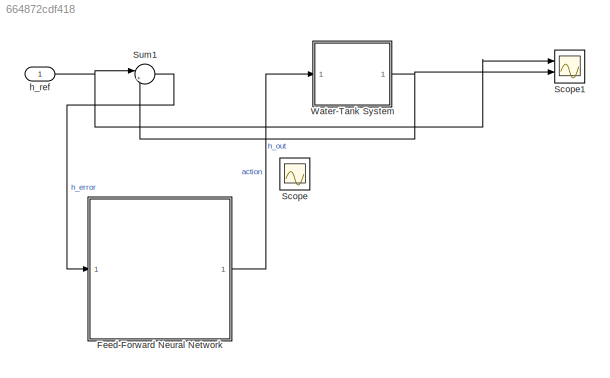
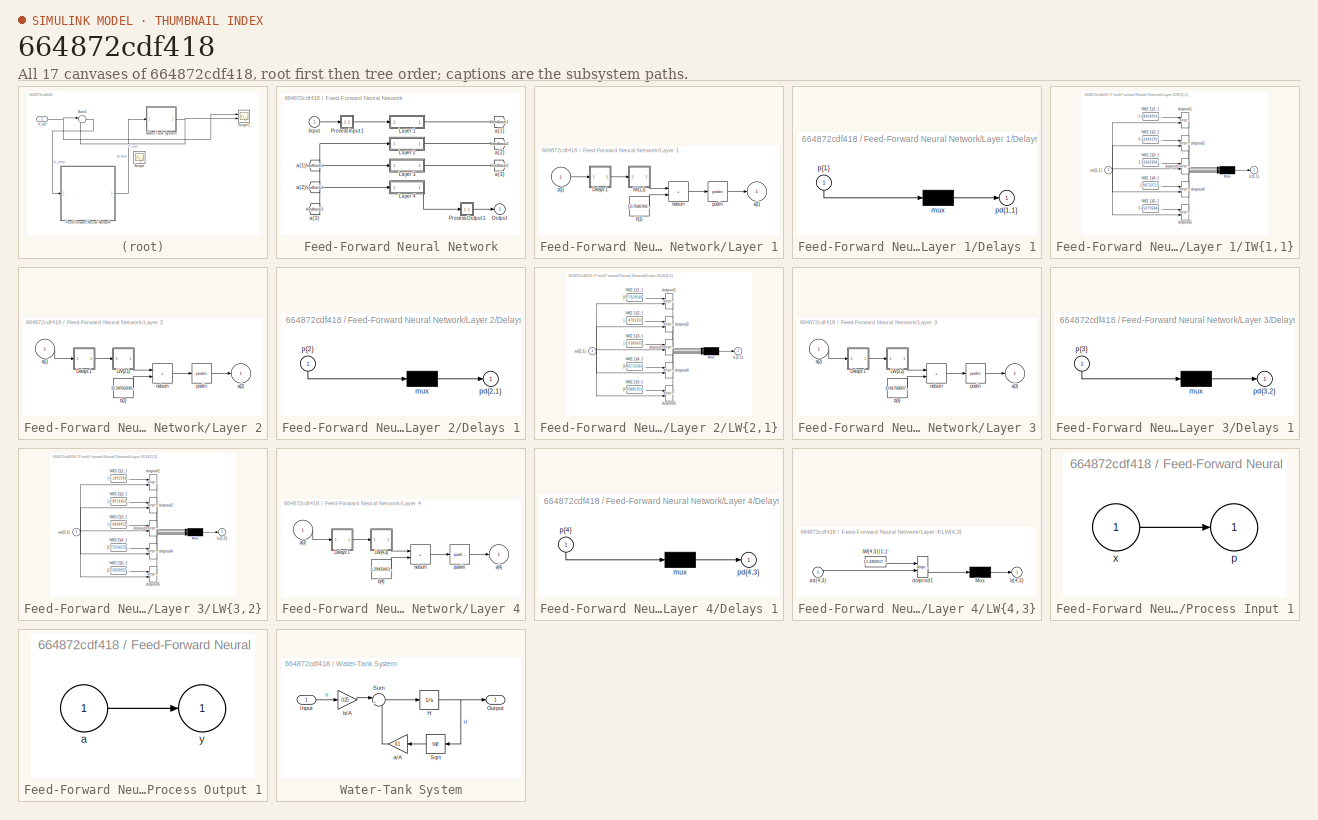
[diagram: thumbnail index - all 17 canvases of the model, root first then tree order]
MODEL slx_664872cdf418
KIND model
CONFIG AbsTol = auto
CONFIG EnableMultiTasking = on
CONFIG FixedStep = Ts
CONFIG MaxStep = auto
CONFIG MinStep = auto
CONFIG RelTol = 1e-3
CONFIG SampleTimeConstraint = Unconstrained
CONFIG SolverName = FixedStepAuto
CONFIG StartTime = 0
CONFIG StopTime = T
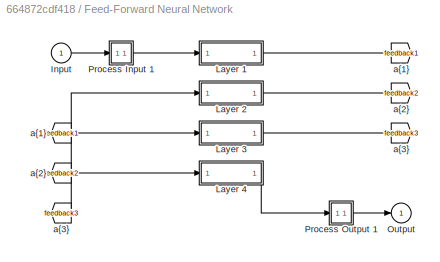
BLOCK [SubSystem] Feed-Forward Neural Network
  Ports = [1, 1]
BLOCK [From] Feed-Forward Neural Network/ a{1} 
  GotoTag = feedback1
BLOCK [From] Feed-Forward Neural Network/ a{2} 
  GotoTag = feedback2
BLOCK [From] Feed-Forward Neural Network/ a{3} 
  GotoTag = feedback3
BLOCK [Inport] Feed-Forward Neural Network/Input
  PortDimensions = 1
BLOCK [SubSystem] Feed-Forward Neural Network/Layer 1
  Ports = [1, 1]
BLOCK [SubSystem] Feed-Forward Neural Network/Layer 1/Delays 1
  Ports = [1, 1]
BLOCK [Mux] Feed-Forward Neural Network/Layer 1/Delays 1/mux
  Inputs = 1
  Ports = [1, 1]
BLOCK [Outport] Feed-Forward Neural Network/Layer 1/Delays 1/pd{1,1}
BLOCK [Inport] Feed-Forward Neural Network/Layer 1/Delays 1/p{1}
  NameLocation = left
  PortDimensions = 1
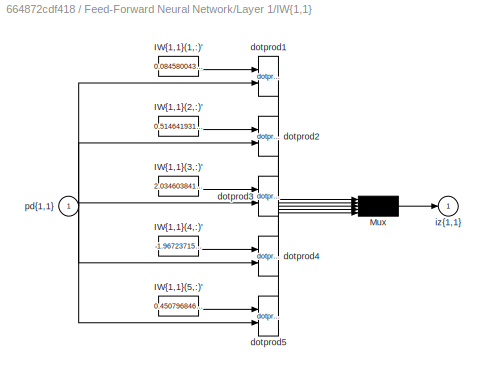
BLOCK [SubSystem] Feed-Forward Neural Network/Layer 1/IW{1,1}
  Ports = [1, 1]
BLOCK [Constant] Feed-Forward Neural Network/Layer 1/IW{1,1}/IW{1,1}(1,:)'
  Value = 0.08458004332974687622392906405366375111043453216552734375
BLOCK [Constant] Feed-Forward Neural Network/Layer 1/IW{1,1}/IW{1,1}(2,:)'
  Value = 0.51464193115439471615246702640433795750141143798828125
BLOCK [Constant] Feed-Forward Neural Network/Layer 1/IW{1,1}/IW{1,1}(3,:)'
  Value = 2.034603841537224067081979228532873094081878662109375
BLOCK [Constant] Feed-Forward Neural Network/Layer 1/IW{1,1}/IW{1,1}(4,:)'
  Value = -1.9672371565702821971655112065491266548633575439453125
BLOCK [Constant] Feed-Forward Neural Network/Layer 1/IW{1,1}/IW{1,1}(5,:)'
  Value = 0.4507968467827974112793754102312959730625152587890625
BLOCK [Mux] Feed-Forward Neural Network/Layer 1/IW{1,1}/Mux
  Inputs = 5
  Ports = [5, 1]
BLOCK [Reference] Feed-Forward Neural Network/Layer 1/IW{1,1}/dotprod1  REF=neural/Weight Functions/dotprod
  Ports = [2, 1]
  SourceBlock = neural/Weight Functions/dotprod
  SourceType = DOTPROD
BLOCK [Reference] Feed-Forward Neural Network/Layer 1/IW{1,1}/dotprod2  REF=neural/Weight Functions/dotprod
  Ports = [2, 1]
  SourceBlock = neural/Weight Functions/dotprod
  SourceType = DOTPROD
BLOCK [Reference] Feed-Forward Neural Network/Layer 1/IW{1,1}/dotprod3  REF=neural/Weight Functions/dotprod
  Ports = [2, 1]
  SourceBlock = neural/Weight Functions/dotprod
  SourceType = DOTPROD
BLOCK [Reference] Feed-Forward Neural Network/Layer 1/IW{1,1}/dotprod4  REF=neural/Weight Functions/dotprod
  Ports = [2, 1]
  SourceBlock = neural/Weight Functions/dotprod
  SourceType = DOTPROD
BLOCK [Reference] Feed-Forward Neural Network/Layer 1/IW{1,1}/dotprod5  REF=neural/Weight Functions/dotprod
  Ports = [2, 1]
  SourceBlock = neural/Weight Functions/dotprod
  SourceType = DOTPROD
BLOCK [Outport] Feed-Forward Neural Network/Layer 1/IW{1,1}/iz{1,1}
BLOCK [Inport] Feed-Forward Neural Network/Layer 1/IW{1,1}/pd{1,1}
  PortDimensions = 1
BLOCK [Outport] Feed-Forward Neural Network/Layer 1/a{1}
  InitialOutput = [0;0;0;0;0]
BLOCK [Constant] Feed-Forward Neural Network/Layer 1/b{1}
  Value = [-0.70267691226445416763368712054216302931308746337890625;1.9441118626148965464750517639913596212863922119140625;-0.0024982773542194989212228417585492934449575841426849365234375;-1.7874443940025326327258881065063178539276123046875;-1.0619052260730137415833951308741234242916107177734375]
BLOCK [Sum] Feed-Forward Neural Network/Layer 1/netsum
  IconShape = rectangular
  InputSameDT = on
  Inputs = 2
  OutDataTypeStr = Inherit: Same as first input
  Ports = [2, 1]
  SaturateOnIntegerOverflow = on
BLOCK [Reference] Feed-Forward Neural Network/Layer 1/poslin  REF=neural/Transfer Functions/poslin
  Ports = [1, 1]
  SourceBlock = neural/Transfer Functions/poslin
  SourceType = POSLIN
BLOCK [Inport] Feed-Forward Neural Network/Layer 1/p{1}
  PortDimensions = 1
BLOCK [SubSystem] Feed-Forward Neural Network/Layer 2
  Ports = [1, 1]
BLOCK [SubSystem] Feed-Forward Neural Network/Layer 2/Delays 1
  Ports = [1, 1]
BLOCK [Mux] Feed-Forward Neural Network/Layer 2/Delays 1/mux
  Inputs = 1
  Ports = [1, 1]
BLOCK [Outport] Feed-Forward Neural Network/Layer 2/Delays 1/pd{2,1}
BLOCK [Inport] Feed-Forward Neural Network/Layer 2/Delays 1/p{2}
  NameLocation = left
  PortDimensions = 5
BLOCK [SubSystem] Feed-Forward Neural Network/Layer 2/LW{2,1}
  Ports = [1, 1]
BLOCK [Constant] Feed-Forward Neural Network/Layer 2/LW{2,1}/IW{2,1}(1,:)'
  Value = [0.77629180081908566446458053178503178060054779052734375;0.904733204720408412669030440156348049640655517578125;1.58831970939234867756795210880227386951446533203125;-1.4930946711265307147442626956035383045673370361328125;-0.1956938507728158971321619219452259130775928497314453125]
BLOCK [Constant] Feed-Forward Neural Network/Layer 2/LW{2,1}/IW{2,1}(2,:)'
  Value = [-0.478125017103722516065289482867228798568248748779296875;-0.149074622792209510180327924899756908416748046875;-0.83684781732996171843552701830049045383930206298828125;-0.1717271117958241444245715001670760102570056915283203125;0.66171832955984111190872454244527034461498260498046875]
BLOCK [Constant] Feed-Forward Neural Network/Layer 2/LW{2,1}/IW{2,1}(3,:)'
  Value = [-0.038060355520969445242140949403619742952287197113037109375;-0.702498535596178808049216968356631696224212646484375;1.760685271561095444070588200702331960201263427734375;-0.558205564596863101911594640114344656467437744140625;0.08155574102925426671628628128019045107066631317138671875]
BLOCK [Constant] Feed-Forward Neural Network/Layer 2/LW{2,1}/IW{2,1}(4,:)'
  Value = [0.457103641876854649428452148640644736588001251220703125;0.414310642513245952489597812018473632633686065673828125;-0.5129500625500214017193911786307580769062042236328125;1.307443647886918913769704886362887918949127197265625;0.190843360348565915796115177727187983691692352294921875]
BLOCK [Constant] Feed-Forward Neural Network/Layer 2/LW{2,1}/IW{2,1}(5,:)'
  Value = [0.038819142756211226508167300153218093328177928924560546875;-0.2994463496722499229463210212998092174530029296875;1.2871891198820286650317257226561196148395538330078125;-0.88489651696314819417921171407215297222137451171875;0.126791612576112211474566038305056281387805938720703125]
BLOCK [Mux] Feed-Forward Neural Network/Layer 2/LW{2,1}/Mux
  Inputs = 5
  Ports = [5, 1]
BLOCK [Inport] Feed-Forward Neural Network/Layer 2/LW{2,1}/ad{2,1}
  PortDimensions = 5
BLOCK [Reference] Feed-Forward Neural Network/Layer 2/LW{2,1}/dotprod1  REF=neural/Weight Functions/dotprod
  Ports = [2, 1]
  SourceBlock = neural/Weight Functions/dotprod
  SourceType = DOTPROD
BLOCK [Reference] Feed-Forward Neural Network/Layer 2/LW{2,1}/dotprod2  REF=neural/Weight Functions/dotprod
  Ports = [2, 1]
  SourceBlock = neural/Weight Functions/dotprod
  SourceType = DOTPROD
BLOCK [Reference] Feed-Forward Neural Network/Layer 2/LW{2,1}/dotprod3  REF=neural/Weight Functions/dotprod
  Ports = [2, 1]
  SourceBlock = neural/Weight Functions/dotprod
  SourceType = DOTPROD
BLOCK [Reference] Feed-Forward Neural Network/Layer 2/LW{2,1}/dotprod4  REF=neural/Weight Functions/dotprod
  Ports = [2, 1]
  SourceBlock = neural/Weight Functions/dotprod
  SourceType = DOTPROD
BLOCK [Reference] Feed-Forward Neural Network/Layer 2/LW{2,1}/dotprod5  REF=neural/Weight Functions/dotprod
  Ports = [2, 1]
  SourceBlock = neural/Weight Functions/dotprod
  SourceType = DOTPROD
BLOCK [Outport] Feed-Forward Neural Network/Layer 2/LW{2,1}/lz{2,1}
BLOCK [Inport] Feed-Forward Neural Network/Layer 2/a{1} 
  PortDimensions = 5
BLOCK [Outport] Feed-Forward Neural Network/Layer 2/a{2}
  InitialOutput = [0;0;0;0;0]
BLOCK [Constant] Feed-Forward Neural Network/Layer 2/b{2}
  Value = [0.347650085763074712108533503851504065096378326416015625;0.995280023859578477640752680599689483642578125;0.324709775319052373898642827043659053742885589599609375;-0.934418318492216126713856283458881080150604248046875;-0.372570225161703072469521202947362326085567474365234375]
BLOCK [Sum] Feed-Forward Neural Network/Layer 2/netsum
  IconShape = rectangular
  InputSameDT = on
  Inputs = 2
  OutDataTypeStr = Inherit: Same as first input
  Ports = [2, 1]
  SaturateOnIntegerOverflow = on
BLOCK [Reference] Feed-Forward Neural Network/Layer 2/poslin  REF=neural/Transfer Functions/poslin
  Ports = [1, 1]
  SourceBlock = neural/Transfer Functions/poslin
  SourceType = POSLIN
BLOCK [SubSystem] Feed-Forward Neural Network/Layer 3
  Ports = [1, 1]
BLOCK [SubSystem] Feed-Forward Neural Network/Layer 3/Delays 1
  Ports = [1, 1]
BLOCK [Mux] Feed-Forward Neural Network/Layer 3/Delays 1/mux
  Inputs = 1
  Ports = [1, 1]
BLOCK [Outport] Feed-Forward Neural Network/Layer 3/Delays 1/pd{3,2}
BLOCK [Inport] Feed-Forward Neural Network/Layer 3/Delays 1/p{3}
  NameLocation = left
  PortDimensions = 5
BLOCK [SubSystem] Feed-Forward Neural Network/Layer 3/LW{3,2}
  Ports = [1, 1]
BLOCK [Constant] Feed-Forward Neural Network/Layer 3/LW{3,2}/IW{3,2}(1,:)'
  Value = [-0.189159475713862601509163141599856317043304443359375;-0.86964645386692074335854840683168731629848480224609375;-0.831472867084841027462971396744251251220703125;1.0414447088972462740485980248195119202136993408203125;0.90120736960998459874616628439980559051036834716796875]
BLOCK [Constant] Feed-Forward Neural Network/Layer 3/LW{3,2}/IW{3,2}(2,:)'
  Value = [-0.89144635051683562831925655700615607202053070068359375;0.1376473217443854313302153968834318220615386962890625;0.588569081367813939920097254798747599124908447265625;-0.478200756352175349039868024192401207983493804931640625;-0.832357244006134866509682979085482656955718994140625]
BLOCK [Constant] Feed-Forward Neural Network/Layer 3/LW{3,2}/IW{3,2}(3,:)'
  Value = [-0.0868453995946719403686842042588978074491024017333984375;-0.462355226781380690415090839451295323669910430908203125;-0.6266075244142472744357519331970252096652984619140625;0.09600046538269256524156247678547515533864498138427734375;-0.366631862295628108139311507329693995416164398193359375]
BLOCK [Constant] Feed-Forward Neural Network/Layer 3/LW{3,2}/IW{3,2}(4,:)'
  Value = [1.7203413509427145644536949475877918303012847900390625;-0.92635514289312281821509031942696310579776763916015625;-0.1374456688608436671916734894693945534527301788330078125;-0.82470217198602202568480379341053776443004608154296875;-0.1599749861497726521886164618990733288228511810302734375]
BLOCK [Constant] Feed-Forward Neural Network/Layer 3/LW{3,2}/IW{3,2}(5,:)'
  Value = [1.74939955869640240138096487498842179775238037109375;-0.81762725466590480127848650226951576769351959228515625;-0.327866705073724118424394191606552340090274810791015625;-2.5060141105430755459337888169102370738983154296875;-1.113850456009028988546560867689549922943115234375]
BLOCK [Mux] Feed-Forward Neural Network/Layer 3/LW{3,2}/Mux
  Inputs = 5
  Ports = [5, 1]
BLOCK [Inport] Feed-Forward Neural Network/Layer 3/LW{3,2}/ad{3,2}
  PortDimensions = 5
BLOCK [Reference] Feed-Forward Neural Network/Layer 3/LW{3,2}/dotprod1  REF=neural/Weight Functions/dotprod
  Ports = [2, 1]
  SourceBlock = neural/Weight Functions/dotprod
  SourceType = DOTPROD
BLOCK [Reference] Feed-Forward Neural Network/Layer 3/LW{3,2}/dotprod2  REF=neural/Weight Functions/dotprod
  Ports = [2, 1]
  SourceBlock = neural/Weight Functions/dotprod
  SourceType = DOTPROD
BLOCK [Reference] Feed-Forward Neural Network/Layer 3/LW{3,2}/dotprod3  REF=neural/Weight Functions/dotprod
  Ports = [2, 1]
  SourceBlock = neural/Weight Functions/dotprod
  SourceType = DOTPROD
BLOCK [Reference] Feed-Forward Neural Network/Layer 3/LW{3,2}/dotprod4  REF=neural/Weight Functions/dotprod
  Ports = [2, 1]
  SourceBlock = neural/Weight Functions/dotprod
  SourceType = DOTPROD
BLOCK [Reference] Feed-Forward Neural Network/Layer 3/LW{3,2}/dotprod5  REF=neural/Weight Functions/dotprod
  Ports = [2, 1]
  SourceBlock = neural/Weight Functions/dotprod
  SourceType = DOTPROD
BLOCK [Outport] Feed-Forward Neural Network/Layer 3/LW{3,2}/lz{3,2}
BLOCK [Inport] Feed-Forward Neural Network/Layer 3/a{2} 
  PortDimensions = 5
BLOCK [Outport] Feed-Forward Neural Network/Layer 3/a{3}
  InitialOutput = [0;0;0;0;0]
BLOCK [Constant] Feed-Forward Neural Network/Layer 3/b{3}
  Value = [0.81768837081677536726687094414955936372280120849609375;0.072651936629081814711383913163444958627223968505859375;0.5121950766916534281136819117818959057331085205078125;-0.62331986420061646914092534643714316189289093017578125;-0.3676686287314776535595228779129683971405029296875]
BLOCK [Sum] Feed-Forward Neural Network/Layer 3/netsum
  IconShape = rectangular
  InputSameDT = on
  Inputs = 2
  OutDataTypeStr = Inherit: Same as first input
  Ports = [2, 1]
  SaturateOnIntegerOverflow = on
BLOCK [Reference] Feed-Forward Neural Network/Layer 3/poslin  REF=neural/Transfer Functions/poslin
  Ports = [1, 1]
  SourceBlock = neural/Transfer Functions/poslin
  SourceType = POSLIN
BLOCK [SubSystem] Feed-Forward Neural Network/Layer 4
  Ports = [1, 1]
BLOCK [SubSystem] Feed-Forward Neural Network/Layer 4/Delays 1
  Ports = [1, 1]
BLOCK [Mux] Feed-Forward Neural Network/Layer 4/Delays 1/mux
  Inputs = 1
  Ports = [1, 1]
BLOCK [Outport] Feed-Forward Neural Network/Layer 4/Delays 1/pd{4,3}
BLOCK [Inport] Feed-Forward Neural Network/Layer 4/Delays 1/p{4}
  NameLocation = left
  PortDimensions = 5
BLOCK [SubSystem] Feed-Forward Neural Network/Layer 4/LW{4,3}
  Ports = [1, 1]
BLOCK [Constant] Feed-Forward Neural Network/Layer 4/LW{4,3}/IW{4,3}(1,:)'
  Value = [-1.430261705612256850628227766719646751880645751953125;0.9247344860449457915052562384516932070255279541015625;-0.3825169601658451323800136378849856555461883544921875;0.2217499931071681140704043855294003151357173919677734375;1.094752539619000319959241096512414515018463134765625]
BLOCK [Mux] Feed-Forward Neural Network/Layer 4/LW{4,3}/Mux
  Inputs = 1
  Ports = [1, 1]
BLOCK [Inport] Feed-Forward Neural Network/Layer 4/LW{4,3}/ad{4,3}
  PortDimensions = 5
BLOCK [Reference] Feed-Forward Neural Network/Layer 4/LW{4,3}/dotprod1  REF=neural/Weight Functions/dotprod
  Ports = [2, 1]
  SourceBlock = neural/Weight Functions/dotprod
  SourceType = DOTPROD
BLOCK [Outport] Feed-Forward Neural Network/Layer 4/LW{4,3}/lz{4,3}
BLOCK [Inport] Feed-Forward Neural Network/Layer 4/a{3} 
  PortDimensions = 5
BLOCK [Outport] Feed-Forward Neural Network/Layer 4/a{4}
  InitialOutput = 0
BLOCK [Constant] Feed-Forward Neural Network/Layer 4/b{4}
  Value = -1.2943341395711078778418823276297189295291900634765625
BLOCK [Sum] Feed-Forward Neural Network/Layer 4/netsum
  IconShape = rectangular
  InputSameDT = on
  Inputs = 2
  OutDataTypeStr = Inherit: Same as first input
  Ports = [2, 1]
  SaturateOnIntegerOverflow = on
BLOCK [Reference] Feed-Forward Neural Network/Layer 4/purelin  REF=neural/Transfer Functions/purelin
  Ports = [1, 1]
  SourceBlock = neural/Transfer Functions/purelin
  SourceType = PURELIN
BLOCK [Outport] Feed-Forward Neural Network/Output
  InitialOutput = 0
BLOCK [SubSystem] Feed-Forward Neural Network/Process Input 1
  Ports = [1, 1]
BLOCK [Outport] Feed-Forward Neural Network/Process Input 1/p
  PortDimensions = 1
BLOCK [Inport] Feed-Forward Neural Network/Process Input 1/x
  PortDimensions = 1
BLOCK [SubSystem] Feed-Forward Neural Network/Process Output 1
  Ports = [1, 1]
BLOCK [Inport] Feed-Forward Neural Network/Process Output 1/a
  PortDimensions = 1
BLOCK [Outport] Feed-Forward Neural Network/Process Output 1/y
  PortDimensions = 1
BLOCK [Goto] Feed-Forward Neural Network/a{1}
  GotoTag = feedback1
BLOCK [Goto] Feed-Forward Neural Network/a{2}
  GotoTag = feedback2
BLOCK [Goto] Feed-Forward Neural Network/a{3}
  GotoTag = feedback3
BLOCK [Scope] Scope
  Floating = off
  IOType = viewer
  NumInputPorts = 1
  Ports = []
  ScopeSpecificationString = Simulink.scopes.TimeScopeBlockCfg('CurrentConfiguration', extmgr.ConfigurationSet(extmgr.Configuration('Core','General UI',true),extmgr.Configuration('Core','Source UI',true),extmgr.Configuration('Sources','WiredSimulink',true),extmgr.Configuration('Visuals','Time Domain',true,'SerializedDisplays',{struct('MinYLimReal','1.64702','MaxYLimReal','21.18944','YLabelReal','','MinYLimMag','0.00000','MaxY...<+2648ch>
BLOCK [Scope] Scope1
  Floating = off
  NumInputPorts = 2
  Ports = [2]
  ScopeSpecificationString = Simulink.scopes.TimeScopeBlockCfg('CurrentConfiguration', extmgr.ConfigurationSet(extmgr.Configuration('Core','General UI',true),extmgr.Configuration('Core','Source UI',true),extmgr.Configuration('Sources','WiredSimulink',true,'DataLoggingVariableName','ScopeData1'),extmgr.Configuration('Visuals','Time Domain',true,'SerializedDisplays',{struct('MinYLimReal','-2.58567','MaxYLimReal','23.27101','YLa...<+1405ch>
BLOCK [Sum] Sum1
  Inputs = |+-
  Ports = [2, 1]
  SaturateOnIntegerOverflow = on
BLOCK [SubSystem] Water-Tank System
  Ports = [1, 1]
BLOCK [Integrator] Water-Tank System/H
  InitialCondition = 3
  LimitOutput = on
  LowerSaturationLimit = 0
  Ports = [1, 1]
BLOCK [Inport] Water-Tank System/Input
BLOCK [Outport] Water-Tank System/Output
  VectorParamsAs1DForOutWhenUnconnected = off
BLOCK [Sqrt] Water-Tank System/Sqrt
  NameLocation = top
  OutputSignalType = real
BLOCK [Sum] Water-Tank System/Sum
  Inputs = |+-
  Ports = [2, 1]
  SaturateOnIntegerOverflow = on
BLOCK [Gain] Water-Tank System/a//A
  Gain = 0.1
  OutDataTypeStr = Inherit: Same as input
  ParamDataTypeStr = Inherit: Same as input
  SaturateOnIntegerOverflow = on
BLOCK [Gain] Water-Tank System/b//A
  Gain = 0.25
  OutDataTypeStr = Inherit: Same as input
  ParamDataTypeStr = Inherit: Same as input
  SaturateOnIntegerOverflow = on
BLOCK [Inport] h_ref
LINE Feed-Forward Neural Network/ a{1} :1 -> Feed-Forward Neural Network/Layer 2:1
LINE Feed-Forward Neural Network/ a{2} :1 -> Feed-Forward Neural Network/Layer 3:1
LINE Feed-Forward Neural Network/ a{3} :1 -> Feed-Forward Neural Network/Layer 4:1
LINE Feed-Forward Neural Network/Input:1 -> Feed-Forward Neural Network/Process Input 1:1
LINE Feed-Forward Neural Network/Layer 1/Delays 1/mux:1 -> Feed-Forward Neural Network/Layer 1/Delays 1/pd{1,1}:1
LINE Feed-Forward Neural Network/Layer 1/Delays 1/p{1}:1 -> Feed-Forward Neural Network/Layer 1/Delays 1/mux:1
LINE Feed-Forward Neural Network/Layer 1/Delays 1:1 -> Feed-Forward Neural Network/Layer 1/IW{1,1}:1
LINE Feed-Forward Neural Network/Layer 1/IW{1,1}/IW{1,1}(1,:)':1 -> Feed-Forward Neural Network/Layer 1/IW{1,1}/dotprod1:1
LINE Feed-Forward Neural Network/Layer 1/IW{1,1}/IW{1,1}(2,:)':1 -> Feed-Forward Neural Network/Layer 1/IW{1,1}/dotprod2:1
LINE Feed-Forward Neural Network/Layer 1/IW{1,1}/IW{1,1}(3,:)':1 -> Feed-Forward Neural Network/Layer 1/IW{1,1}/dotprod3:1
LINE Feed-Forward Neural Network/Layer 1/IW{1,1}/IW{1,1}(4,:)':1 -> Feed-Forward Neural Network/Layer 1/IW{1,1}/dotprod4:1
LINE Feed-Forward Neural Network/Layer 1/IW{1,1}/IW{1,1}(5,:)':1 -> Feed-Forward Neural Network/Layer 1/IW{1,1}/dotprod5:1
LINE Feed-Forward Neural Network/Layer 1/IW{1,1}/Mux:1 -> Feed-Forward Neural Network/Layer 1/IW{1,1}/iz{1,1}:1
LINE Feed-Forward Neural Network/Layer 1/IW{1,1}/dotprod1:1 -> Feed-Forward Neural Network/Layer 1/IW{1,1}/Mux:1
LINE Feed-Forward Neural Network/Layer 1/IW{1,1}/dotprod2:1 -> Feed-Forward Neural Network/Layer 1/IW{1,1}/Mux:2
LINE Feed-Forward Neural Network/Layer 1/IW{1,1}/dotprod3:1 -> Feed-Forward Neural Network/Layer 1/IW{1,1}/Mux:3
LINE Feed-Forward Neural Network/Layer 1/IW{1,1}/dotprod4:1 -> Feed-Forward Neural Network/Layer 1/IW{1,1}/Mux:4
LINE Feed-Forward Neural Network/Layer 1/IW{1,1}/dotprod5:1 -> Feed-Forward Neural Network/Layer 1/IW{1,1}/Mux:5
NET Feed-Forward Neural Network/Layer 1/IW{1,1}/pd{1,1}:1 -> Feed-Forward Neural Network/Layer 1/IW{1,1}/dotprod1:2, Feed-Forward Neural Network/Layer 1/IW{1,1}/dotprod2:2, Feed-Forward Neural Network/Layer 1/IW{1,1}/dotprod3:2, Feed-Forward Neural Network/Layer 1/IW{1,1}/dotprod4:2, Feed-Forward Neural Network/Layer 1/IW{1,1}/dotprod5:2
LINE Feed-Forward Neural Network/Layer 1/IW{1,1}:1 -> Feed-Forward Neural Network/Layer 1/netsum:1
LINE Feed-Forward Neural Network/Layer 1/b{1}:1 -> Feed-Forward Neural Network/Layer 1/netsum:2
LINE Feed-Forward Neural Network/Layer 1/netsum:1 -> Feed-Forward Neural Network/Layer 1/poslin:1
LINE Feed-Forward Neural Network/Layer 1/poslin:1 -> Feed-Forward Neural Network/Layer 1/a{1}:1
LINE Feed-Forward Neural Network/Layer 1/p{1}:1 -> Feed-Forward Neural Network/Layer 1/Delays 1:1
LINE Feed-Forward Neural Network/Layer 1:1 -> Feed-Forward Neural Network/a{1}:1
LINE Feed-Forward Neural Network/Layer 2/Delays 1/mux:1 -> Feed-Forward Neural Network/Layer 2/Delays 1/pd{2,1}:1
LINE Feed-Forward Neural Network/Layer 2/Delays 1/p{2}:1 -> Feed-Forward Neural Network/Layer 2/Delays 1/mux:1
LINE Feed-Forward Neural Network/Layer 2/Delays 1:1 -> Feed-Forward Neural Network/Layer 2/LW{2,1}:1
LINE Feed-Forward Neural Network/Layer 2/LW{2,1}/IW{2,1}(1,:)':1 -> Feed-Forward Neural Network/Layer 2/LW{2,1}/dotprod1:1
LINE Feed-Forward Neural Network/Layer 2/LW{2,1}/IW{2,1}(2,:)':1 -> Feed-Forward Neural Network/Layer 2/LW{2,1}/dotprod2:1
LINE Feed-Forward Neural Network/Layer 2/LW{2,1}/IW{2,1}(3,:)':1 -> Feed-Forward Neural Network/Layer 2/LW{2,1}/dotprod3:1
LINE Feed-Forward Neural Network/Layer 2/LW{2,1}/IW{2,1}(4,:)':1 -> Feed-Forward Neural Network/Layer 2/LW{2,1}/dotprod4:1
LINE Feed-Forward Neural Network/Layer 2/LW{2,1}/IW{2,1}(5,:)':1 -> Feed-Forward Neural Network/Layer 2/LW{2,1}/dotprod5:1
LINE Feed-Forward Neural Network/Layer 2/LW{2,1}/Mux:1 -> Feed-Forward Neural Network/Layer 2/LW{2,1}/lz{2,1}:1
NET Feed-Forward Neural Network/Layer 2/LW{2,1}/ad{2,1}:1 -> Feed-Forward Neural Network/Layer 2/LW{2,1}/dotprod1:2, Feed-Forward Neural Network/Layer 2/LW{2,1}/dotprod2:2, Feed-Forward Neural Network/Layer 2/LW{2,1}/dotprod3:2, Feed-Forward Neural Network/Layer 2/LW{2,1}/dotprod4:2, Feed-Forward Neural Network/Layer 2/LW{2,1}/dotprod5:2
LINE Feed-Forward Neural Network/Layer 2/LW{2,1}/dotprod1:1 -> Feed-Forward Neural Network/Layer 2/LW{2,1}/Mux:1
LINE Feed-Forward Neural Network/Layer 2/LW{2,1}/dotprod2:1 -> Feed-Forward Neural Network/Layer 2/LW{2,1}/Mux:2
LINE Feed-Forward Neural Network/Layer 2/LW{2,1}/dotprod3:1 -> Feed-Forward Neural Network/Layer 2/LW{2,1}/Mux:3
LINE Feed-Forward Neural Network/Layer 2/LW{2,1}/dotprod4:1 -> Feed-Forward Neural Network/Layer 2/LW{2,1}/Mux:4
LINE Feed-Forward Neural Network/Layer 2/LW{2,1}/dotprod5:1 -> Feed-Forward Neural Network/Layer 2/LW{2,1}/Mux:5
LINE Feed-Forward Neural Network/Layer 2/LW{2,1}:1 -> Feed-Forward Neural Network/Layer 2/netsum:1
LINE Feed-Forward Neural Network/Layer 2/a{1} :1 -> Feed-Forward Neural Network/Layer 2/Delays 1:1
LINE Feed-Forward Neural Network/Layer 2/b{2}:1 -> Feed-Forward Neural Network/Layer 2/netsum:2
LINE Feed-Forward Neural Network/Layer 2/netsum:1 -> Feed-Forward Neural Network/Layer 2/poslin:1
LINE Feed-Forward Neural Network/Layer 2/poslin:1 -> Feed-Forward Neural Network/Layer 2/a{2}:1
LINE Feed-Forward Neural Network/Layer 2:1 -> Feed-Forward Neural Network/a{2}:1
LINE Feed-Forward Neural Network/Layer 3/Delays 1/mux:1 -> Feed-Forward Neural Network/Layer 3/Delays 1/pd{3,2}:1
LINE Feed-Forward Neural Network/Layer 3/Delays 1/p{3}:1 -> Feed-Forward Neural Network/Layer 3/Delays 1/mux:1
LINE Feed-Forward Neural Network/Layer 3/Delays 1:1 -> Feed-Forward Neural Network/Layer 3/LW{3,2}:1
LINE Feed-Forward Neural Network/Layer 3/LW{3,2}/IW{3,2}(1,:)':1 -> Feed-Forward Neural Network/Layer 3/LW{3,2}/dotprod1:1
LINE Feed-Forward Neural Network/Layer 3/LW{3,2}/IW{3,2}(2,:)':1 -> Feed-Forward Neural Network/Layer 3/LW{3,2}/dotprod2:1
LINE Feed-Forward Neural Network/Layer 3/LW{3,2}/IW{3,2}(3,:)':1 -> Feed-Forward Neural Network/Layer 3/LW{3,2}/dotprod3:1
LINE Feed-Forward Neural Network/Layer 3/LW{3,2}/IW{3,2}(4,:)':1 -> Feed-Forward Neural Network/Layer 3/LW{3,2}/dotprod4:1
LINE Feed-Forward Neural Network/Layer 3/LW{3,2}/IW{3,2}(5,:)':1 -> Feed-Forward Neural Network/Layer 3/LW{3,2}/dotprod5:1
LINE Feed-Forward Neural Network/Layer 3/LW{3,2}/Mux:1 -> Feed-Forward Neural Network/Layer 3/LW{3,2}/lz{3,2}:1
NET Feed-Forward Neural Network/Layer 3/LW{3,2}/ad{3,2}:1 -> Feed-Forward Neural Network/Layer 3/LW{3,2}/dotprod1:2, Feed-Forward Neural Network/Layer 3/LW{3,2}/dotprod2:2, Feed-Forward Neural Network/Layer 3/LW{3,2}/dotprod3:2, Feed-Forward Neural Network/Layer 3/LW{3,2}/dotprod4:2, Feed-Forward Neural Network/Layer 3/LW{3,2}/dotprod5:2
LINE Feed-Forward Neural Network/Layer 3/LW{3,2}/dotprod1:1 -> Feed-Forward Neural Network/Layer 3/LW{3,2}/Mux:1
LINE Feed-Forward Neural Network/Layer 3/LW{3,2}/dotprod2:1 -> Feed-Forward Neural Network/Layer 3/LW{3,2}/Mux:2
LINE Feed-Forward Neural Network/Layer 3/LW{3,2}/dotprod3:1 -> Feed-Forward Neural Network/Layer 3/LW{3,2}/Mux:3
LINE Feed-Forward Neural Network/Layer 3/LW{3,2}/dotprod4:1 -> Feed-Forward Neural Network/Layer 3/LW{3,2}/Mux:4
LINE Feed-Forward Neural Network/Layer 3/LW{3,2}/dotprod5:1 -> Feed-Forward Neural Network/Layer 3/LW{3,2}/Mux:5
LINE Feed-Forward Neural Network/Layer 3/LW{3,2}:1 -> Feed-Forward Neural Network/Layer 3/netsum:1
LINE Feed-Forward Neural Network/Layer 3/a{2} :1 -> Feed-Forward Neural Network/Layer 3/Delays 1:1
LINE Feed-Forward Neural Network/Layer 3/b{3}:1 -> Feed-Forward Neural Network/Layer 3/netsum:2
LINE Feed-Forward Neural Network/Layer 3/netsum:1 -> Feed-Forward Neural Network/Layer 3/poslin:1
LINE Feed-Forward Neural Network/Layer 3/poslin:1 -> Feed-Forward Neural Network/Layer 3/a{3}:1
LINE Feed-Forward Neural Network/Layer 3:1 -> Feed-Forward Neural Network/a{3}:1
LINE Feed-Forward Neural Network/Layer 4/Delays 1/mux:1 -> Feed-Forward Neural Network/Layer 4/Delays 1/pd{4,3}:1
LINE Feed-Forward Neural Network/Layer 4/Delays 1/p{4}:1 -> Feed-Forward Neural Network/Layer 4/Delays 1/mux:1
LINE Feed-Forward Neural Network/Layer 4/Delays 1:1 -> Feed-Forward Neural Network/Layer 4/LW{4,3}:1
LINE Feed-Forward Neural Network/Layer 4/LW{4,3}/IW{4,3}(1,:)':1 -> Feed-Forward Neural Network/Layer 4/LW{4,3}/dotprod1:1
LINE Feed-Forward Neural Network/Layer 4/LW{4,3}/Mux:1 -> Feed-Forward Neural Network/Layer 4/LW{4,3}/lz{4,3}:1
LINE Feed-Forward Neural Network/Layer 4/LW{4,3}/ad{4,3}:1 -> Feed-Forward Neural Network/Layer 4/LW{4,3}/dotprod1:2
LINE Feed-Forward Neural Network/Layer 4/LW{4,3}/dotprod1:1 -> Feed-Forward Neural Network/Layer 4/LW{4,3}/Mux:1
LINE Feed-Forward Neural Network/Layer 4/LW{4,3}:1 -> Feed-Forward Neural Network/Layer 4/netsum:1
LINE Feed-Forward Neural Network/Layer 4/a{3} :1 -> Feed-Forward Neural Network/Layer 4/Delays 1:1
LINE Feed-Forward Neural Network/Layer 4/b{4}:1 -> Feed-Forward Neural Network/Layer 4/netsum:2
LINE Feed-Forward Neural Network/Layer 4/netsum:1 -> Feed-Forward Neural Network/Layer 4/purelin:1
LINE Feed-Forward Neural Network/Layer 4/purelin:1 -> Feed-Forward Neural Network/Layer 4/a{4}:1
LINE Feed-Forward Neural Network/Layer 4:1 -> Feed-Forward Neural Network/Process Output 1:1
LINE Feed-Forward Neural Network/Process Input 1/x:1 -> Feed-Forward Neural Network/Process Input 1/p:1
LINE Feed-Forward Neural Network/Process Input 1:1 -> Feed-Forward Neural Network/Layer 1:1
LINE Feed-Forward Neural Network/Process Output 1/a:1 -> Feed-Forward Neural Network/Process Output 1/y:1
LINE Feed-Forward Neural Network/Process Output 1:1 -> Feed-Forward Neural Network/Output:1
LINE Feed-Forward Neural Network:1 -> Water-Tank System:1
LINE Sum1:1 -> Feed-Forward Neural Network:1
NET Water-Tank System/H:1 -> Water-Tank System/Output:1, Water-Tank System/Sqrt:1
LINE Water-Tank System/Input:1 -> Water-Tank System/b//A:1
LINE Water-Tank System/Sqrt:1 -> Water-Tank System/a//A:1
LINE Water-Tank System/Sum:1 -> Water-Tank System/H:1
LINE Water-Tank System/a//A:1 -> Water-Tank System/Sum:2
LINE Water-Tank System/b//A:1 -> Water-Tank System/Sum:1
NET Water-Tank System:1 -> Scope1:2, Sum1:2
NET h_ref:1 -> Scope1:1, Sum1:1
note: NET lines group one-source signal fan-out (src -> all destinations, sorted); 1:1 wires keep LINE
